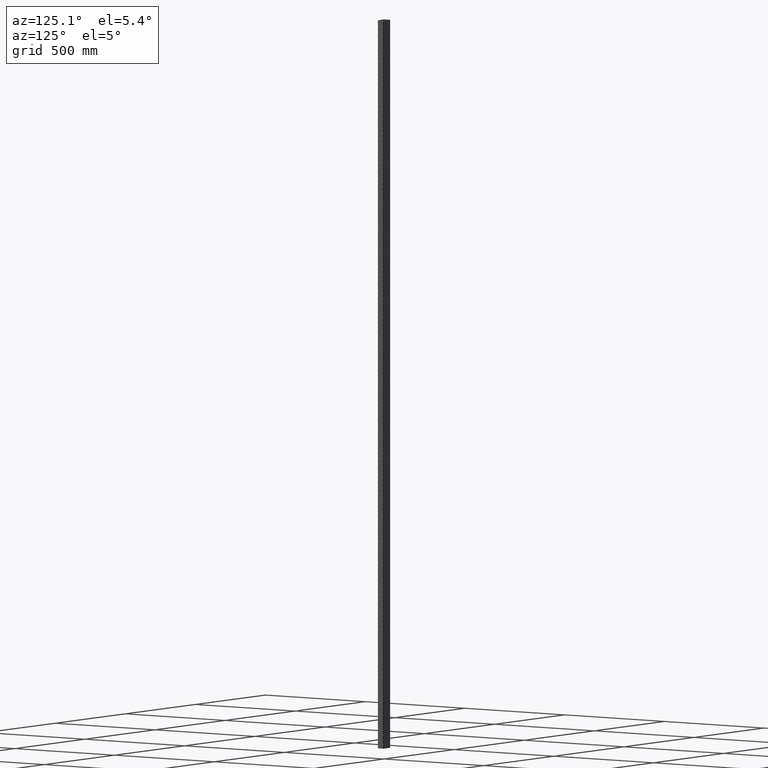
[diagram: clean part render]
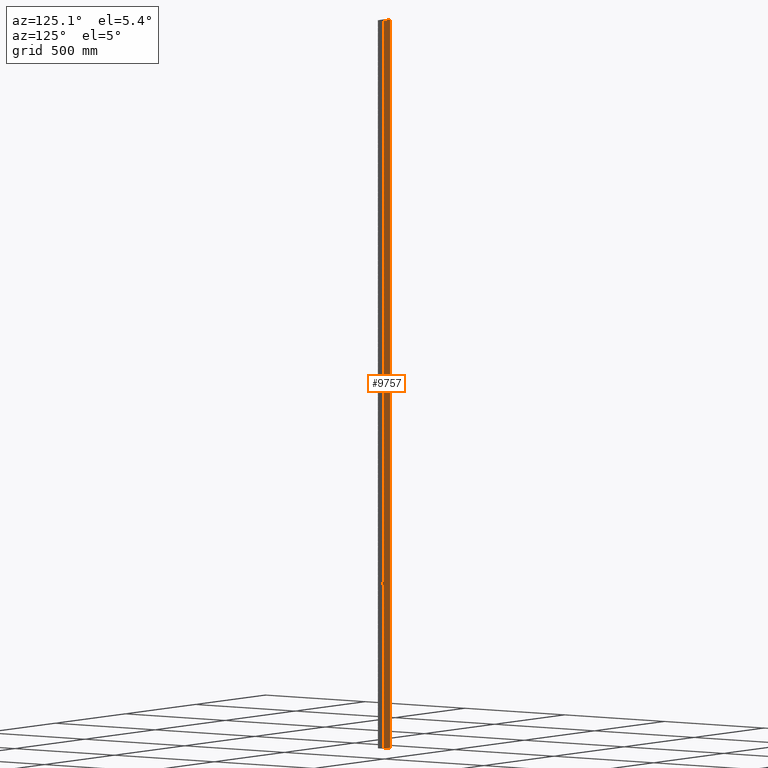
[diagram: same view with one face highlighted and labeled with its STEP entity id]
A machine part, auxiliary view. The second image highlights one B-rep face of the part: STEP entity #9757.
In plain terms, the highlighted planar face has unit normal (0, 1, 0).
Its self-contained STEP definition (entity closure, byte-faithful):
#2661 = CARTESIAN_POINT ( 'NONE',  ( 21.24999999999999645, 15.00000000000000533, -3000.000000000000000 ) ) ;
#4704 = VERTEX_POINT ( 'NONE', #29976 ) ;
#4786 = PLANE ( 'NONE',  #17047 ) ;
#9757 = ADVANCED_FACE ( 'NONE', ( #71142 ), #4786, .T. ) ;
#16594 = DIRECTION ( 'NONE',  ( -0.000000000000000000, 0.000000000000000000, -1.000000000000000000 ) ) ;
#17047 = AXIS2_PLACEMENT_3D ( 'NONE', #53245, #43089, #83382 ) ;
#17829 = ORIENTED_EDGE ( 'NONE', *, *, #61076, .T. ) ;
#19459 = VECTOR ( 'NONE', #101131, 1000.000000000000000 ) ;
#23569 = VERTEX_POINT ( 'NONE', #82069 ) ;
#27837 = CARTESIAN_POINT ( 'NONE',  ( 21.24999999999999645, 15.00000000000000533, 0.000000000000000000 ) ) ;
#29976 = CARTESIAN_POINT ( 'NONE',  ( 21.24999999999999645, 15.00000000000000533, -3000.000000000000000 ) ) ;
#31656 = LINE ( 'NONE', #62225, #55881 ) ;
#38549 = VECTOR ( 'NONE', #95899, 1000.000000000000000 ) ;
#43089 = DIRECTION ( 'NONE',  ( 0.000000000000000000, 1.000000000000000000, 0.000000000000000000 ) ) ;
#53245 = CARTESIAN_POINT ( 'NONE',  ( -25.00000000000000000, 15.00000000000000533, -3000.000000000000000 ) ) ;
#55881 = VECTOR ( 'NONE', #81375, 1000.000000000000000 ) ;
#56307 = CARTESIAN_POINT ( 'NONE',  ( -21.25000000000000000, 15.00000000000000533, -3000.000000000000000 ) ) ;
#59050 = VERTEX_POINT ( 'NONE', #56307 ) ;
#61076 = EDGE_CURVE ( 'NONE', #59050, #23569, #79600, .T. ) ;
#62225 = CARTESIAN_POINT ( 'NONE',  ( -25.00000000000000000, 15.00000000000000533, 0.000000000000000000 ) ) ;
#62232 = ORIENTED_EDGE ( 'NONE', *, *, #118867, .T. ) ;
#70994 = EDGE_LOOP ( 'NONE', ( #79995, #17829, #104147, #62232 ) ) ;
#71142 = FACE_OUTER_BOUND ( 'NONE', #70994, .T. ) ;
#74758 = EDGE_CURVE ( 'NONE', #117063, #23569, #31656, .T. ) ;
#79600 = LINE ( 'NONE', #106127, #38549 ) ;
#79995 = ORIENTED_EDGE ( 'NONE', *, *, #112143, .T. ) ;
#81375 = DIRECTION ( 'NONE',  ( -1.000000000000000000, -0.000000000000000000, -0.000000000000000000 ) ) ;
#82069 = CARTESIAN_POINT ( 'NONE',  ( -21.25000000000000000, 15.00000000000000533, 0.000000000000000000 ) ) ;
#83382 = DIRECTION ( 'NONE',  ( 0.000000000000000000, -0.000000000000000000, 1.000000000000000000 ) ) ;
#88891 = VECTOR ( 'NONE', #16594, 1000.000000000000000 ) ;
#95899 = DIRECTION ( 'NONE',  ( 0.000000000000000000, -0.000000000000000000, 1.000000000000000000 ) ) ;
#97328 = CARTESIAN_POINT ( 'NONE',  ( -25.00000000000000000, 15.00000000000000533, -3000.000000000000000 ) ) ;
#101131 = DIRECTION ( 'NONE',  ( -1.000000000000000000, -0.000000000000000000, -0.000000000000000000 ) ) ;
#104147 = ORIENTED_EDGE ( 'NONE', *, *, #74758, .F. ) ;
#106127 = CARTESIAN_POINT ( 'NONE',  ( -21.25000000000000000, 15.00000000000000533, -3000.000000000000000 ) ) ;
#112143 = EDGE_CURVE ( 'NONE', #4704, #59050, #113938, .T. ) ;
#113938 = LINE ( 'NONE', #97328, #19459 ) ;
#117063 = VERTEX_POINT ( 'NONE', #27837 ) ;
#118867 = EDGE_CURVE ( 'NONE', #117063, #4704, #120836, .T. ) ;
#120836 = LINE ( 'NONE', #2661, #88891 ) ;